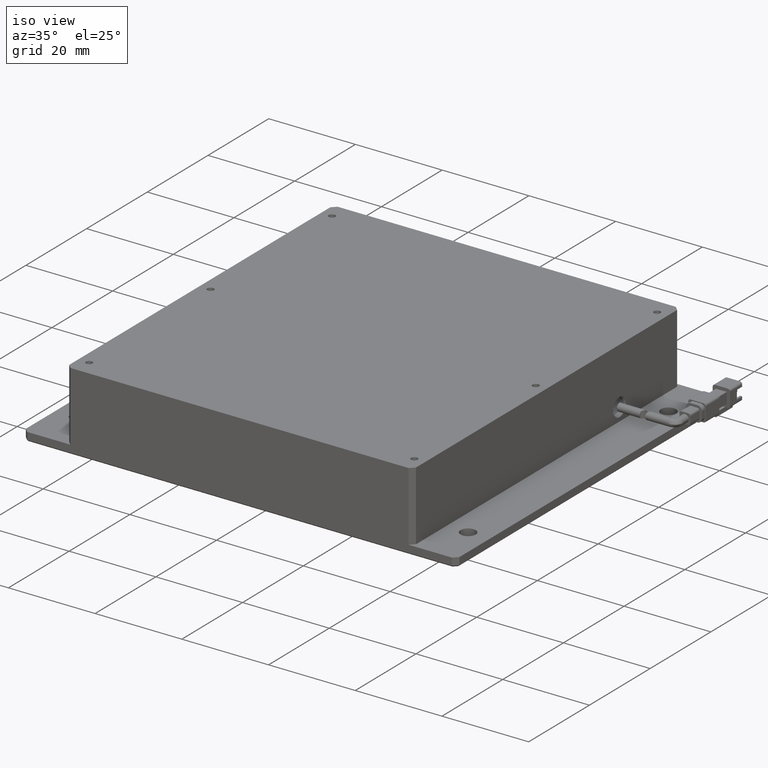
[diagram: clean part render]
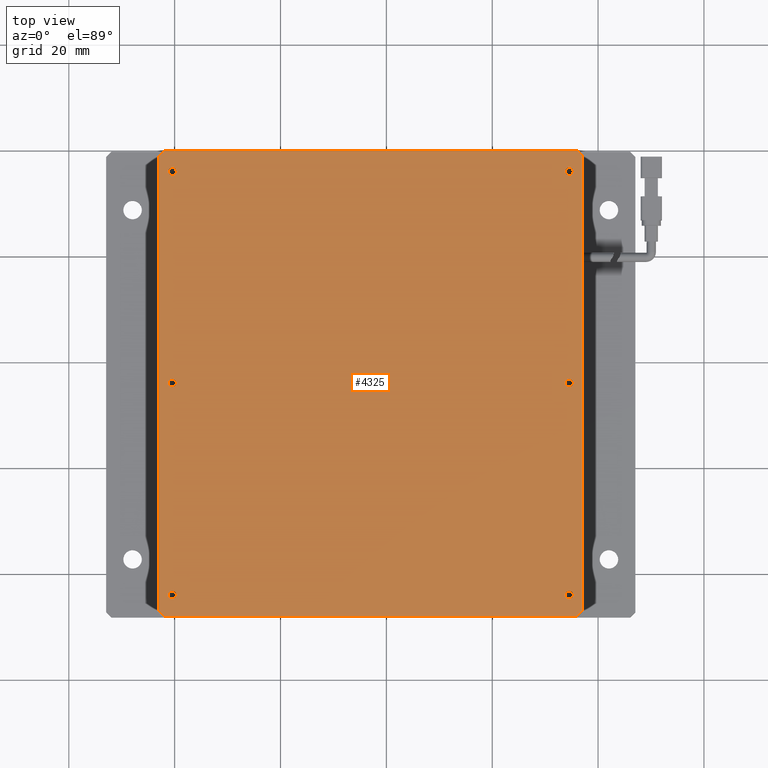
[diagram: tour spotlight — one face highlighted and labeled with its STEP entity id]
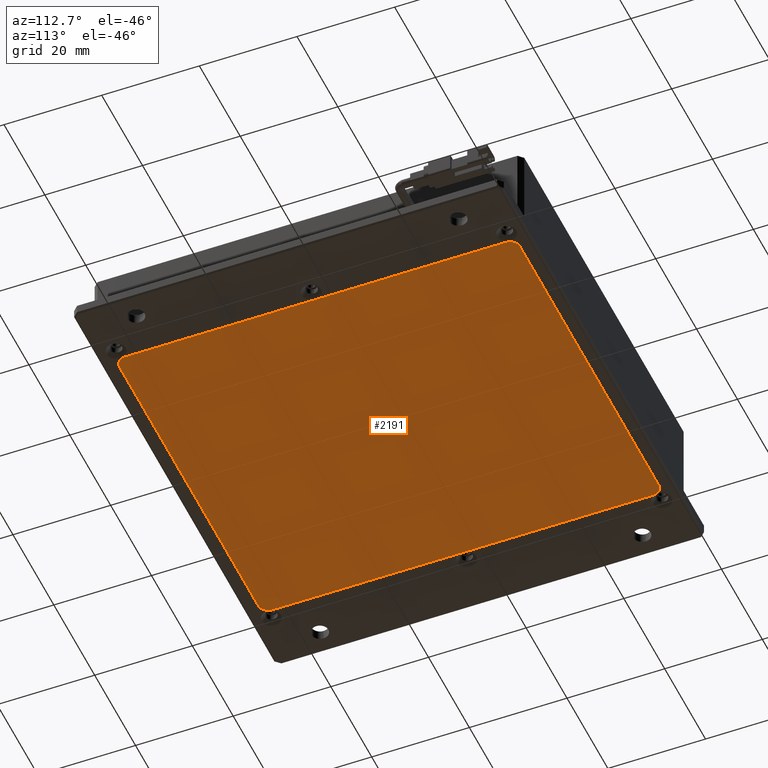
[diagram: tour spotlight — one face highlighted and labeled with its STEP entity id]
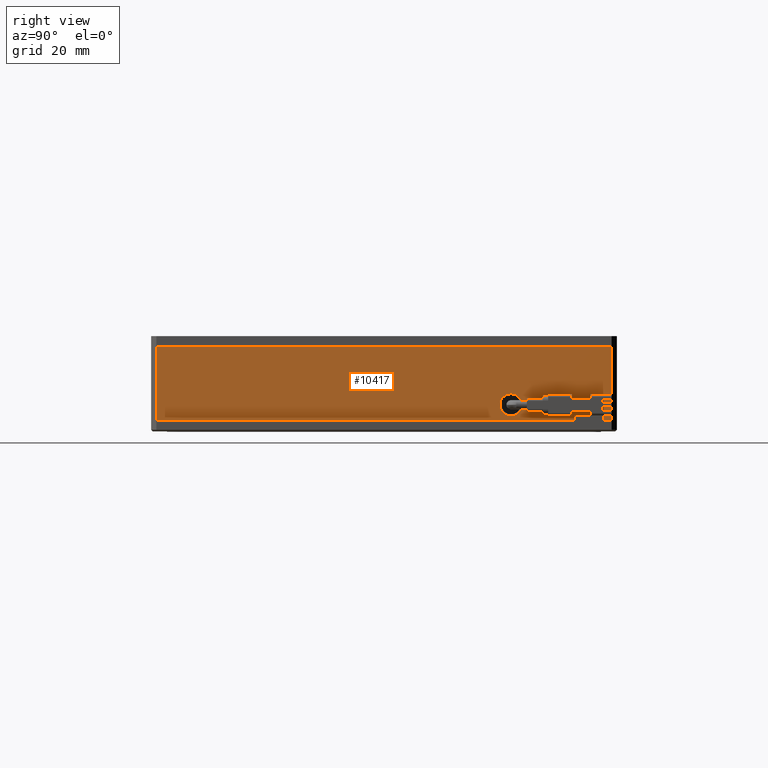
[diagram: tour spotlight — one face highlighted and labeled with its STEP entity id]
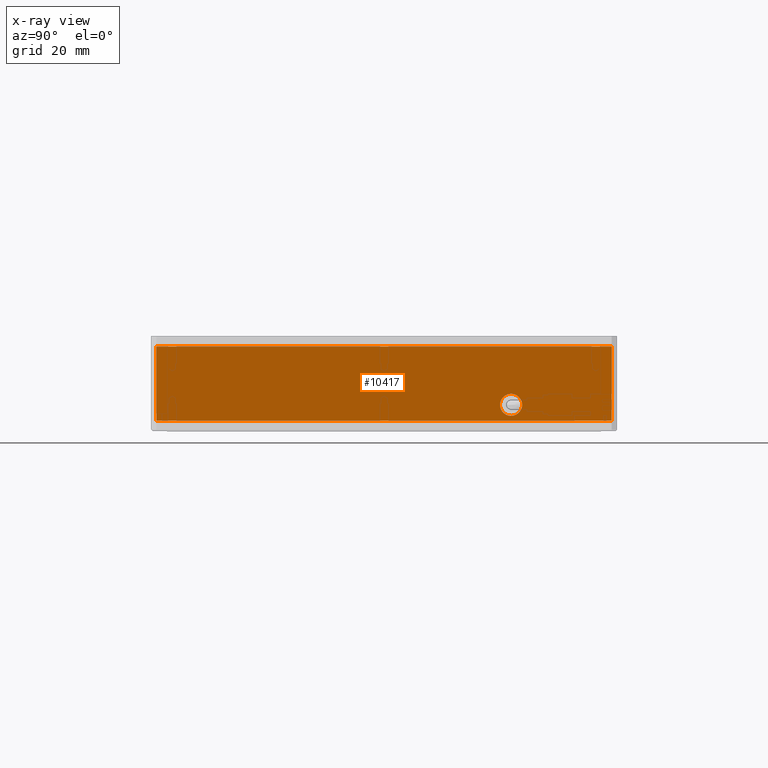
[diagram: x-ray of the same camera — body ghosted, this tour face saturated]
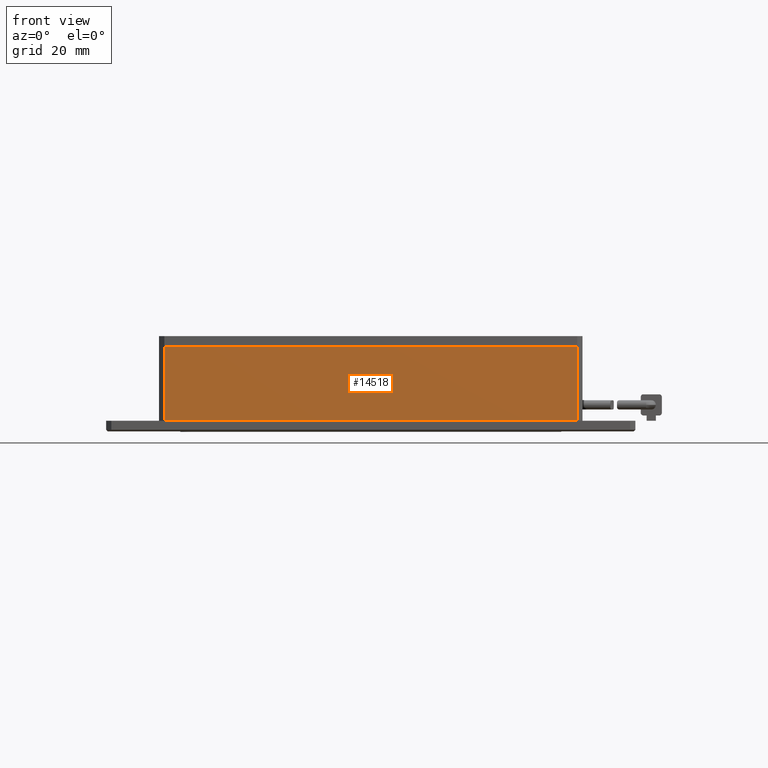
[diagram: tour spotlight — one face highlighted and labeled with its STEP entity id]
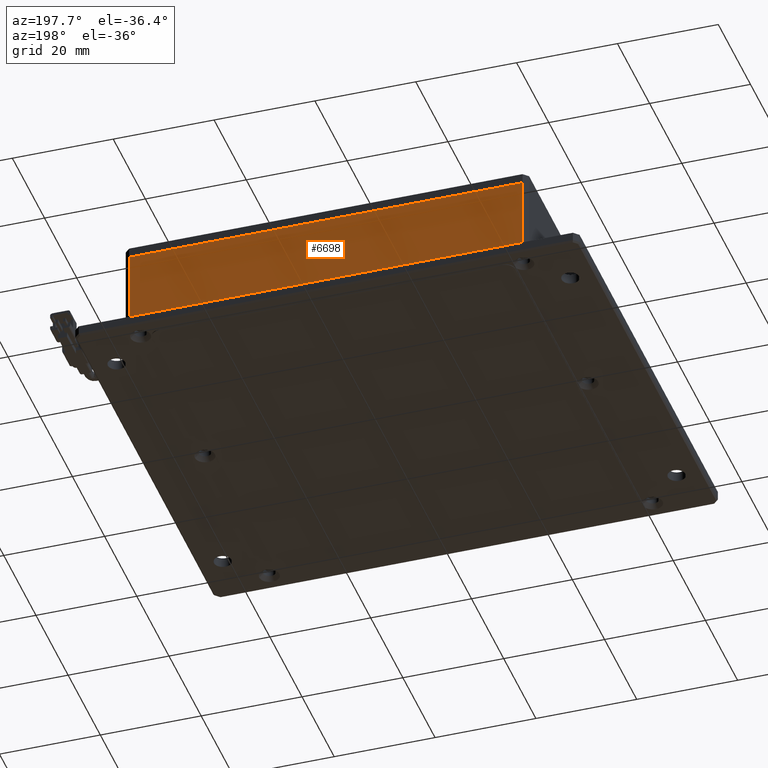
[diagram: tour spotlight — one face highlighted and labeled with its STEP entity id]
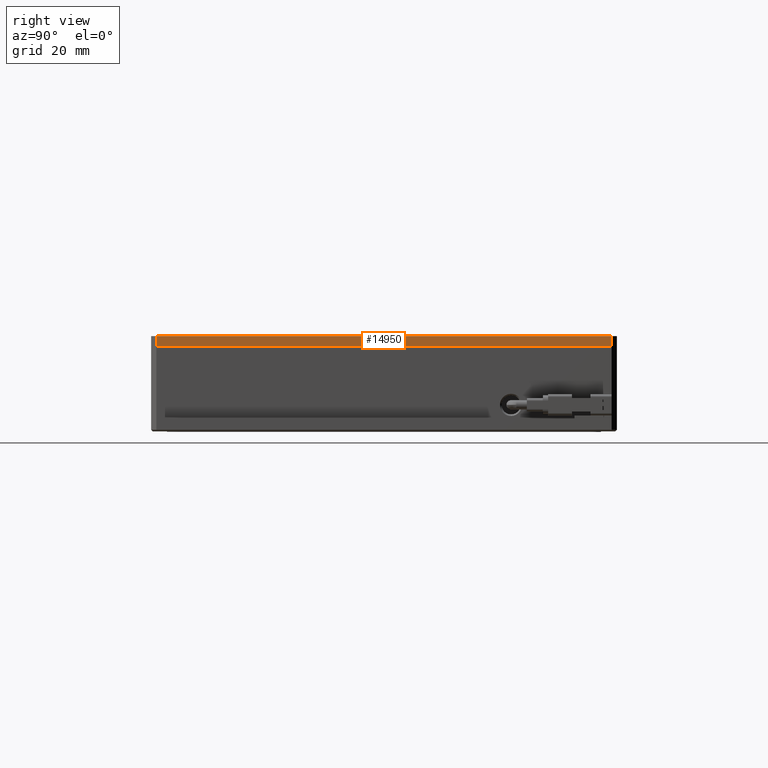
[diagram: tour spotlight — one face highlighted and labeled with its STEP entity id]
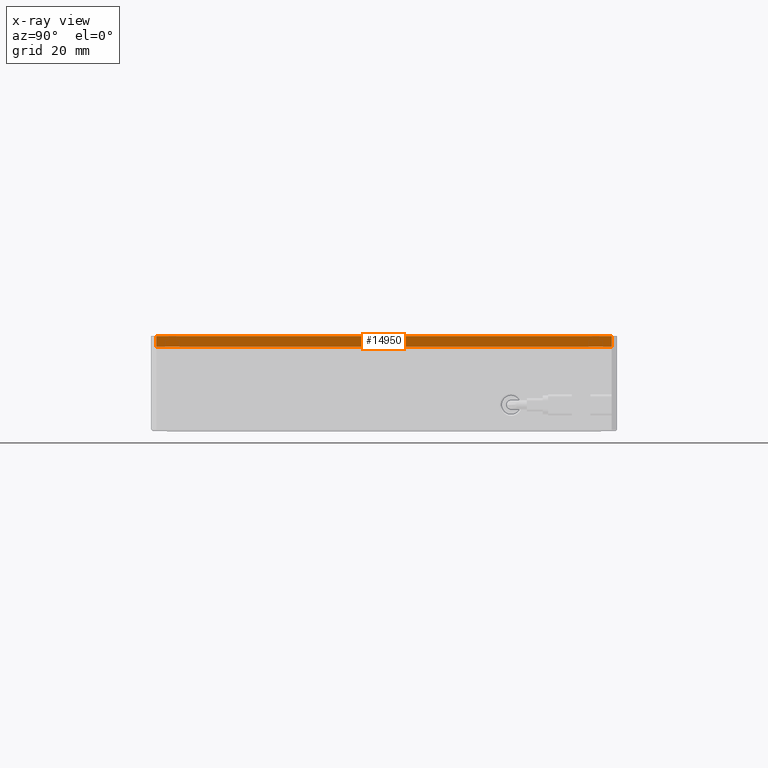
[diagram: x-ray of the same camera — body ghosted, this tour face saturated]
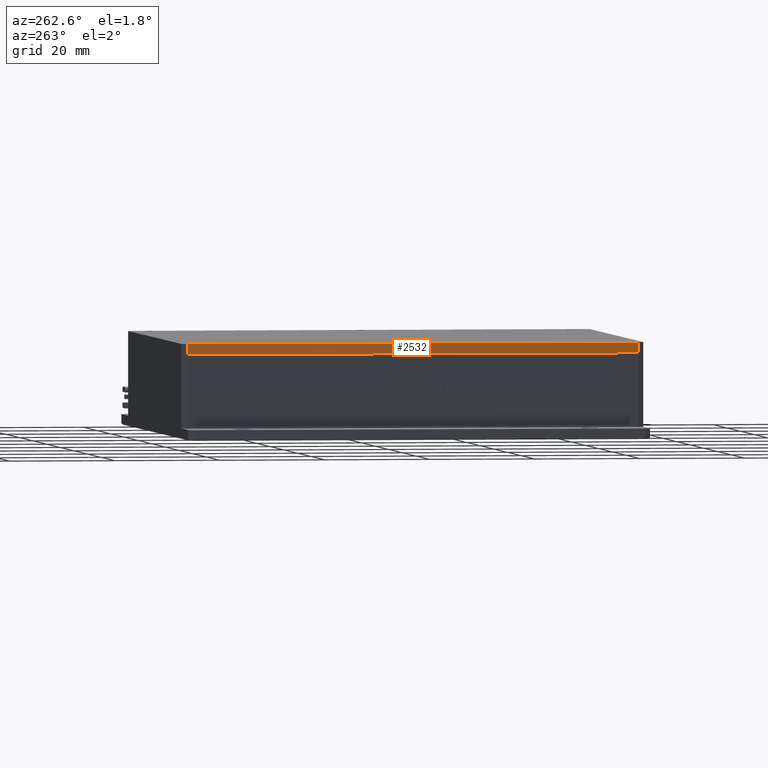
[diagram: tour spotlight — one face highlighted and labeled with its STEP entity id]
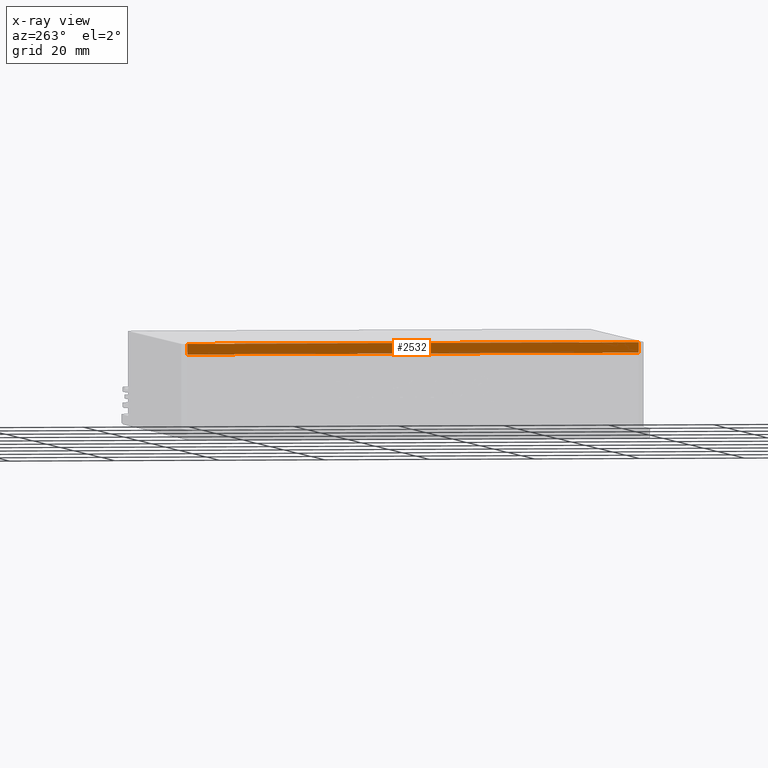
[diagram: x-ray of the same camera — body ghosted, this tour face saturated]
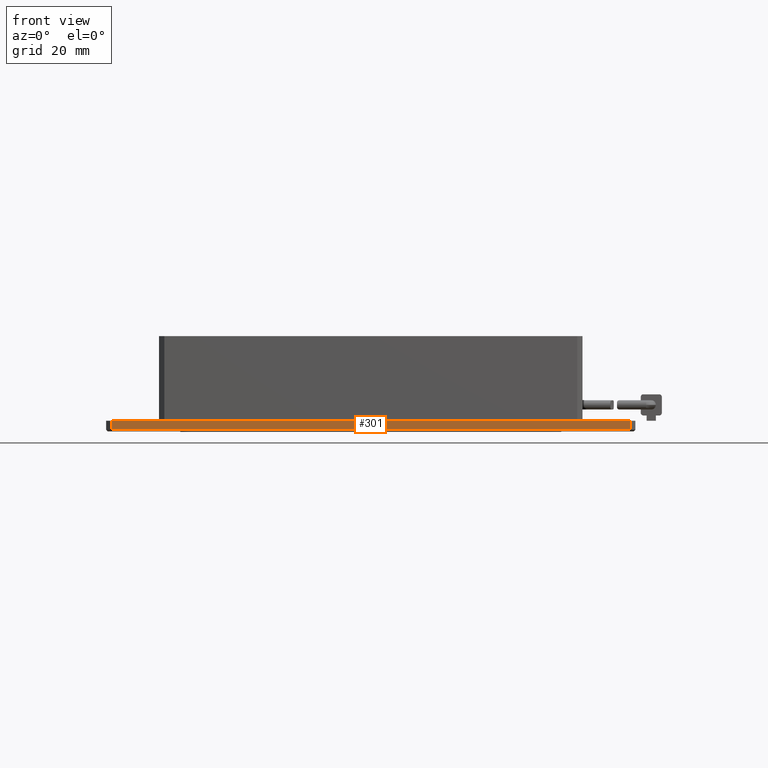
[diagram: tour spotlight — one face highlighted and labeled with its STEP entity id]
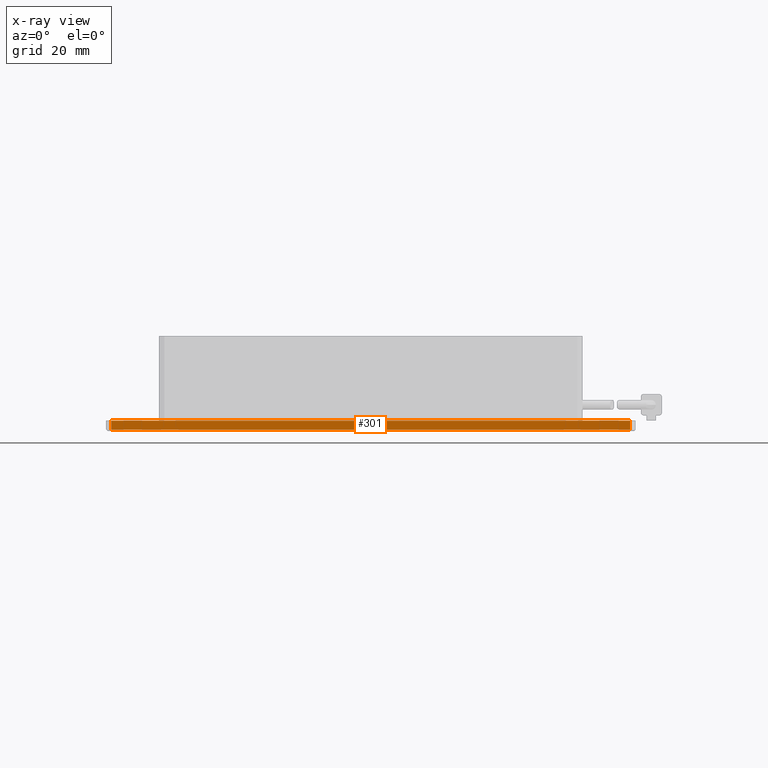
[diagram: x-ray of the same camera — body ghosted, this tour face saturated]
A machine part: a face-by-face anatomy tour. The part has 419 B-rep faces; the first image is the clean iso view, then the 8 largest visible faces are spotlighted one at a time (largest first), each with its STEP entity span.

Face 1 — top view, entity #4325. In plain terms, the highlighted planar face has unit normal (0, 0, 1).
Definition (entity closure, byte-faithful):
#433 = CARTESIAN_POINT ( 'NONE',  ( 53.80231004200067700, 35.79992363497532900, 15.99999999999545600 ) ) ;
#527 = DIRECTION ( 'NONE',  ( 0.0000000000000000000, 0.0000000000000000000, 1.000000000000000000 ) ) ;
#534 = DIRECTION ( 'NONE',  ( -0.7071067811865469100, 0.7071067811865482400, 0.0000000000000000000 ) ) ;
#686 = VERTEX_POINT ( 'NONE', #14427 ) ;
#996 = DIRECTION ( 'NONE',  ( 0.0000000000000000000, 0.0000000000000000000, -1.000000000000000000 ) ) ;
#1053 = VERTEX_POINT ( 'NONE', #8427 ) ;
#1138 = DIRECTION ( 'NONE',  ( -1.000000000000000000, 0.0000000000000000000, 0.0000000000000000000 ) ) ;
#1259 = EDGE_CURVE ( 'NONE', #10862, #11446, #14597, .T. ) ;
#1335 = CARTESIAN_POINT ( 'NONE',  ( -20.44768995799928700, -44.20007636502464300, 15.99999999999545600 ) ) ;
#1338 = CARTESIAN_POINT ( 'NONE',  ( 55.30231004200069100, -4.200076365024715500, 15.99999999999545600 ) ) ;
#1704 = CARTESIAN_POINT ( 'NONE',  ( 56.05231004200065600, 39.79992363497531500, 15.99999999999545600 ) ) ;
#1809 = CIRCLE ( 'NONE', #6921, 0.7500000000000006700 ) ;
#1898 = CARTESIAN_POINT ( 'NONE',  ( 53.80231004200068400, -4.200076365024715500, 15.99999999999545600 ) ) ;
#1986 = EDGE_CURVE ( 'NONE', #11446, #10862, #6411, .T. ) ;
#1996 = VERTEX_POINT ( 'NONE', #1898 ) ;
#2006 = CIRCLE ( 'NONE', #16395, 0.7500000000000006700 ) ;
#2059 = AXIS2_PLACEMENT_3D ( 'NONE', #6174, #15783, #7549 ) ;
#2476 = ORIENTED_EDGE ( 'NONE', *, *, #3124, .T. ) ;
#2542 = FACE_BOUND ( 'NONE', #10980, .T. ) ;
#2716 = DIRECTION ( 'NONE',  ( -1.000000000000000000, 0.0000000000000000000, 0.0000000000000000000 ) ) ;
#2820 = CARTESIAN_POINT ( 'NONE',  ( -19.69768995799928700, -44.20007636502464300, 15.99999999999545600 ) ) ;
#3124 = EDGE_CURVE ( 'NONE', #9339, #11548, #5645, .T. ) ;
#3299 = VERTEX_POINT ( 'NONE', #11050 ) ;
#3390 = VECTOR ( 'NONE', #3647, 1000.000000000000000 ) ;
#3556 = ORIENTED_EDGE ( 'NONE', *, *, #9879, .T. ) ;
#3647 = DIRECTION ( 'NONE',  ( 4.440892098500626200E-016, 1.000000000000000000, 0.0000000000000000000 ) ) ;
#3837 = CARTESIAN_POINT ( 'NONE',  ( 55.30231004200070500, -44.20007636502475600, 15.99999999999545600 ) ) ;
#3889 = DIRECTION ( 'NONE',  ( -4.440892098500626200E-016, -1.000000000000000000, -0.0000000000000000000 ) ) ;
#3994 = VECTOR ( 'NONE', #12648, 1000.000000000000000 ) ;
#4054 = EDGE_CURVE ( 'NONE', #17309, #3299, #14836, .T. ) ;
#4150 = EDGE_CURVE ( 'NONE', #9453, #12008, #15032, .T. ) ;
#4271 = VECTOR ( 'NONE', #15470, 1000.000000000000100 ) ;
#4317 = EDGE_LOOP ( 'NONE', ( #15113, #8524 ) ) ;
#4322 = ORIENTED_EDGE ( 'NONE', *, *, #5707, .T. ) ;
#4325 = ADVANCED_FACE ( 'NONE', ( #13543, #9880, #6628, #6208, #2542, #16744, #13104 ), #10086, .T. ) ;
#4399 = DIRECTION ( 'NONE',  ( 0.0000000000000000000, 0.0000000000000000000, -1.000000000000000000 ) ) ;
#4486 = VECTOR ( 'NONE', #534, 1000.000000000000000 ) ;
#4656 = DIRECTION ( 'NONE',  ( 0.0000000000000000000, 0.0000000000000000000, -1.000000000000000000 ) ) ;
#4698 = EDGE_CURVE ( 'NONE', #1053, #17309, #6813, .T. ) ;
#5261 = AXIS2_PLACEMENT_3D ( 'NONE', #13697, #5412, #15051 ) ;
#5321 = CARTESIAN_POINT ( 'NONE',  ( -22.94768995799934800, -47.20007636502466400, 15.99999999999545600 ) ) ;
#5412 = DIRECTION ( 'NONE',  ( 0.0000000000000000000, 0.0000000000000000000, -1.000000000000000000 ) ) ;
#5611 = CIRCLE ( 'NONE', #8185, 0.7500000000000006700 ) ;
#5645 = CIRCLE ( 'NONE', #16519, 0.7500000000000006700 ) ;
#5707 = EDGE_CURVE ( 'NONE', #16388, #9499, #6926, .T. ) ;
#5802 = CARTESIAN_POINT ( 'NONE',  ( 57.05231004200065600, 39.79992363497531500, 15.99999999999545600 ) ) ;
#5855 = CARTESIAN_POINT ( 'NONE',  ( 56.05231004200068400, -48.20007636502477800, 15.99999999999545600 ) ) ;
#5947 = CIRCLE ( 'NONE', #14403, 0.7500000000000006700 ) ;
#6013 = EDGE_CURVE ( 'NONE', #11548, #9339, #5611, .T. ) ;
#6174 = CARTESIAN_POINT ( 'NONE',  ( 54.55231004200070500, -44.20007636502475600, 15.99999999999545600 ) ) ;
#6208 = FACE_OUTER_BOUND ( 'NONE', #7355, .T. ) ;
#6318 = ORIENTED_EDGE ( 'NONE', *, *, #17138, .T. ) ;
#6393 = CIRCLE ( 'NONE', #11267, 0.7500000000000006700 ) ;
#6411 = CIRCLE ( 'NONE', #11569, 0.7500000000000006700 ) ;
#6413 = ORIENTED_EDGE ( 'NONE', *, *, #16302, .T. ) ;
#6541 = DIRECTION ( 'NONE',  ( 0.0000000000000000000, 0.0000000000000000000, -1.000000000000000000 ) ) ;
#6628 = FACE_BOUND ( 'NONE', #15828, .T. ) ;
#6650 = EDGE_CURVE ( 'NONE', #9499, #15993, #10370, .T. ) ;
#6662 = CARTESIAN_POINT ( 'NONE',  ( 54.55231004200068400, -4.200076365024715500, 15.99999999999545600 ) ) ;
#6686 = DIRECTION ( 'NONE',  ( 0.0000000000000000000, 0.0000000000000000000, -1.000000000000000000 ) ) ;
#6813 = LINE ( 'NONE', #16524, #10496 ) ;
#6921 = AXIS2_PLACEMENT_3D ( 'NONE', #15399, #7151, #16789 ) ;
#6926 = LINE ( 'NONE', #17533, #10197 ) ;
#6973 = CARTESIAN_POINT ( 'NONE',  ( -20.44768995799927700, -4.200076365024618700, 15.99999999999545600 ) ) ;
#7052 = LINE ( 'NONE', #10547, #3390 ) ;
#7128 = VERTEX_POINT ( 'NONE', #2820 ) ;
#7148 = ORIENTED_EDGE ( 'NONE', *, *, #1986, .T. ) ;
#7151 = DIRECTION ( 'NONE',  ( 0.0000000000000000000, 0.0000000000000000000, -1.000000000000000000 ) ) ;
#7187 = EDGE_LOOP ( 'NONE', ( #17250, #3556 ) ) ;
#7267 = ORIENTED_EDGE ( 'NONE', *, *, #12461, .T. ) ;
#7355 = EDGE_LOOP ( 'NONE', ( #17811, #8832, #8895, #9872, #6318, #4322, #8706, #6413 ) ) ;
#7499 = DIRECTION ( 'NONE',  ( 0.0000000000000000000, 0.0000000000000000000, -1.000000000000000000 ) ) ;
#7549 = DIRECTION ( 'NONE',  ( -1.000000000000000000, 0.0000000000000000000, 0.0000000000000000000 ) ) ;
#7711 = EDGE_CURVE ( 'NONE', #12750, #12319, #2006, .T. ) ;
#7803 = CARTESIAN_POINT ( 'NONE',  ( -19.69768995799927300, -4.200076365024618700, 15.99999999999545600 ) ) ;
#8061 = DIRECTION ( 'NONE',  ( -1.000000000000000000, 0.0000000000000000000, 0.0000000000000000000 ) ) ;
#8185 = AXIS2_PLACEMENT_3D ( 'NONE', #12634, #4399, #14025 ) ;
#8353 = DIRECTION ( 'NONE',  ( -1.000000000000000000, 0.0000000000000000000, 0.0000000000000000000 ) ) ;
#8427 = CARTESIAN_POINT ( 'NONE',  ( -21.94768995799933400, -48.20007636502470700, 15.99999999999545600 ) ) ;
#8524 = ORIENTED_EDGE ( 'NONE', *, *, #11099, .T. ) ;
#8557 = AXIS2_PLACEMENT_3D ( 'NONE', #6973, #16594, #8353 ) ;
#8631 = CARTESIAN_POINT ( 'NONE',  ( -21.19768995799933000, 35.79992363497542100, 15.99999999999545600 ) ) ;
#8639 = CARTESIAN_POINT ( 'NONE',  ( 55.30231004200068400, 35.79992363497532900, 15.99999999999545600 ) ) ;
#8706 = ORIENTED_EDGE ( 'NONE', *, *, #6650, .T. ) ;
#8721 = CARTESIAN_POINT ( 'NONE',  ( 57.05231004200065600, 39.79992363497531500, 15.99999999999545600 ) ) ;
#8832 = ORIENTED_EDGE ( 'NONE', *, *, #4054, .T. ) ;
#8867 = CARTESIAN_POINT ( 'NONE',  ( -19.69768995799933000, 35.79992363497542100, 15.99999999999545600 ) ) ;
#8883 = ORIENTED_EDGE ( 'NONE', *, *, #1259, .T. ) ;
#8895 = ORIENTED_EDGE ( 'NONE', *, *, #10539, .T. ) ;
#9056 = CIRCLE ( 'NONE', #8557, 0.7500000000000006700 ) ;
#9196 = CARTESIAN_POINT ( 'NONE',  ( -20.44768995799933000, 35.79992363497542100, 15.99999999999545600 ) ) ;
#9279 = DIRECTION ( 'NONE',  ( -0.7071067811865474600, -0.7071067811865474600, 0.0000000000000000000 ) ) ;
#9339 = VERTEX_POINT ( 'NONE', #8631 ) ;
#9453 = VERTEX_POINT ( 'NONE', #15673 ) ;
#9457 = LINE ( 'NONE', #11545, #13131 ) ;
#9499 = VERTEX_POINT ( 'NONE', #13183 ) ;
#9872 = ORIENTED_EDGE ( 'NONE', *, *, #4150, .T. ) ;
#9879 = EDGE_CURVE ( 'NONE', #12319, #12750, #9942, .T. ) ;
#9880 = FACE_BOUND ( 'NONE', #7187, .T. ) ;
#9892 = ORIENTED_EDGE ( 'NONE', *, *, #14909, .T. ) ;
#9942 = CIRCLE ( 'NONE', #2059, 0.7500000000000006700 ) ;
#10086 = PLANE ( 'NONE',  #15060 ) ;
#10141 = DIRECTION ( 'NONE',  ( 1.000000000000000000, -4.440892098500626200E-016, 0.0000000000000000000 ) ) ;
#10197 = VECTOR ( 'NONE', #9279, 1000.000000000000100 ) ;
#10370 = LINE ( 'NONE', #12139, #17641 ) ;
#10496 = VECTOR ( 'NONE', #15145, 1000.000000000000000 ) ;
#10539 = EDGE_CURVE ( 'NONE', #3299, #9453, #7052, .T. ) ;
#10547 = CARTESIAN_POINT ( 'NONE',  ( 57.05231004200072700, 39.79992363497531500, 15.99999999999545600 ) ) ;
#10596 = DIRECTION ( 'NONE',  ( -1.000000000000000000, 0.0000000000000000000, 0.0000000000000000000 ) ) ;
#10862 = VERTEX_POINT ( 'NONE', #8639 ) ;
#10944 = DIRECTION ( 'NONE',  ( 0.0000000000000000000, 0.0000000000000000000, -1.000000000000000000 ) ) ;
#10969 = ORIENTED_EDGE ( 'NONE', *, *, #6013, .T. ) ;
#10980 = EDGE_LOOP ( 'NONE', ( #7267, #17718 ) ) ;
#11044 = CARTESIAN_POINT ( 'NONE',  ( -21.19768995799929100, -44.20007636502464300, 15.99999999999545600 ) ) ;
#11050 = CARTESIAN_POINT ( 'NONE',  ( 57.05231004200068400, -47.20007636502478500, 15.99999999999545600 ) ) ;
#11099 = EDGE_CURVE ( 'NONE', #17544, #1996, #5947, .T. ) ;
#11154 = AXIS2_PLACEMENT_3D ( 'NONE', #1335, #10944, #2716 ) ;
#11267 = AXIS2_PLACEMENT_3D ( 'NONE', #14936, #6686, #16305 ) ;
#11446 = VERTEX_POINT ( 'NONE', #433 ) ;
#11545 = CARTESIAN_POINT ( 'NONE',  ( -22.94768995799933400, -47.20007636502467800, 15.99999999999545600 ) ) ;
#11548 = VERTEX_POINT ( 'NONE', #8867 ) ;
#11569 = AXIS2_PLACEMENT_3D ( 'NONE', #12907, #4656, #14280 ) ;
#11776 = CARTESIAN_POINT ( 'NONE',  ( -21.94768995799935900, 39.79992363497537200, 15.99999999999545600 ) ) ;
#12008 = VERTEX_POINT ( 'NONE', #1704 ) ;
#12139 = CARTESIAN_POINT ( 'NONE',  ( -22.94768995799934800, 39.79992363497535700, 15.99999999999545600 ) ) ;
#12319 = VERTEX_POINT ( 'NONE', #3837 ) ;
#12337 = AXIS2_PLACEMENT_3D ( 'NONE', #16259, #6541, #1138 ) ;
#12416 = EDGE_CURVE ( 'NONE', #16096, #7128, #17501, .T. ) ;
#12461 = EDGE_CURVE ( 'NONE', #686, #14000, #14479, .T. ) ;
#12634 = CARTESIAN_POINT ( 'NONE',  ( -20.44768995799933000, 35.79992363497542100, 15.99999999999545600 ) ) ;
#12648 = DIRECTION ( 'NONE',  ( -1.000000000000000000, 4.440892098500626200E-016, -0.0000000000000000000 ) ) ;
#12750 = VERTEX_POINT ( 'NONE', #12821 ) ;
#12821 = CARTESIAN_POINT ( 'NONE',  ( 53.80231004200070500, -44.20007636502475600, 15.99999999999545600 ) ) ;
#12907 = CARTESIAN_POINT ( 'NONE',  ( 54.55231004200067700, 35.79992363497532900, 15.99999999999545600 ) ) ;
#13104 = FACE_BOUND ( 'NONE', #4317, .T. ) ;
#13131 = VECTOR ( 'NONE', #14226, 1000.000000000000000 ) ;
#13183 = CARTESIAN_POINT ( 'NONE',  ( -22.94768995799934800, 38.79992363497542800, 15.99999999999545600 ) ) ;
#13543 = FACE_BOUND ( 'NONE', #13879, .T. ) ;
#13697 = CARTESIAN_POINT ( 'NONE',  ( -20.44768995799927700, -4.200076365024618700, 15.99999999999545600 ) ) ;
#13879 = EDGE_LOOP ( 'NONE', ( #7148, #8883 ) ) ;
#14000 = VERTEX_POINT ( 'NONE', #7803 ) ;
#14025 = DIRECTION ( 'NONE',  ( -1.000000000000000000, 0.0000000000000000000, 0.0000000000000000000 ) ) ;
#14226 = DIRECTION ( 'NONE',  ( 0.7071067811865469100, -0.7071067811865482400, -0.0000000000000000000 ) ) ;
#14280 = DIRECTION ( 'NONE',  ( -1.000000000000000000, 0.0000000000000000000, 0.0000000000000000000 ) ) ;
#14403 = AXIS2_PLACEMENT_3D ( 'NONE', #6662, #16276, #8061 ) ;
#14427 = CARTESIAN_POINT ( 'NONE',  ( -21.19768995799927700, -4.200076365024618700, 15.99999999999545600 ) ) ;
#14464 = CARTESIAN_POINT ( 'NONE',  ( 56.05231004200069100, -48.20007636502475600, 15.99999999999545600 ) ) ;
#14479 = CIRCLE ( 'NONE', #5261, 0.7500000000000006700 ) ;
#14597 = CIRCLE ( 'NONE', #12337, 0.7500000000000006700 ) ;
#14836 = LINE ( 'NONE', #5855, #4271 ) ;
#14909 = EDGE_CURVE ( 'NONE', #7128, #16096, #1809, .T. ) ;
#14936 = CARTESIAN_POINT ( 'NONE',  ( 54.55231004200068400, -4.200076365024715500, 15.99999999999545600 ) ) ;
#14986 = LINE ( 'NONE', #5802, #3994 ) ;
#15032 = LINE ( 'NONE', #17062, #4486 ) ;
#15051 = DIRECTION ( 'NONE',  ( -1.000000000000000000, 0.0000000000000000000, 0.0000000000000000000 ) ) ;
#15060 = AXIS2_PLACEMENT_3D ( 'NONE', #8721, #527, #10141 ) ;
#15113 = ORIENTED_EDGE ( 'NONE', *, *, #17477, .T. ) ;
#15145 = DIRECTION ( 'NONE',  ( 1.000000000000000000, -4.440892098500626200E-016, 0.0000000000000000000 ) ) ;
#15399 = CARTESIAN_POINT ( 'NONE',  ( -20.44768995799928700, -44.20007636502464300, 15.99999999999545600 ) ) ;
#15470 = DIRECTION ( 'NONE',  ( 0.7071067811865474600, 0.7071067811865474600, 0.0000000000000000000 ) ) ;
#15475 = EDGE_LOOP ( 'NONE', ( #2476, #10969 ) ) ;
#15581 = EDGE_CURVE ( 'NONE', #14000, #686, #9056, .T. ) ;
#15673 = CARTESIAN_POINT ( 'NONE',  ( 57.05231004200069100, 38.79992363497527200, 15.99999999999545600 ) ) ;
#15729 = CARTESIAN_POINT ( 'NONE',  ( 54.55231004200070500, -44.20007636502475600, 15.99999999999545600 ) ) ;
#15783 = DIRECTION ( 'NONE',  ( 0.0000000000000000000, 0.0000000000000000000, -1.000000000000000000 ) ) ;
#15828 = EDGE_LOOP ( 'NONE', ( #17527, #9892 ) ) ;
#15993 = VERTEX_POINT ( 'NONE', #5321 ) ;
#16096 = VERTEX_POINT ( 'NONE', #11044 ) ;
#16259 = CARTESIAN_POINT ( 'NONE',  ( 54.55231004200067700, 35.79992363497532900, 15.99999999999545600 ) ) ;
#16276 = DIRECTION ( 'NONE',  ( 0.0000000000000000000, 0.0000000000000000000, -1.000000000000000000 ) ) ;
#16302 = EDGE_CURVE ( 'NONE', #15993, #1053, #9457, .T. ) ;
#16305 = DIRECTION ( 'NONE',  ( -1.000000000000000000, 0.0000000000000000000, 0.0000000000000000000 ) ) ;
#16388 = VERTEX_POINT ( 'NONE', #11776 ) ;
#16395 = AXIS2_PLACEMENT_3D ( 'NONE', #15729, #7499, #17152 ) ;
#16519 = AXIS2_PLACEMENT_3D ( 'NONE', #9196, #996, #10596 ) ;
#16524 = CARTESIAN_POINT ( 'NONE',  ( 57.05231004200061300, -48.20007636502470700, 15.99999999999545600 ) ) ;
#16594 = DIRECTION ( 'NONE',  ( 0.0000000000000000000, 0.0000000000000000000, -1.000000000000000000 ) ) ;
#16744 = FACE_BOUND ( 'NONE', #15475, .T. ) ;
#16789 = DIRECTION ( 'NONE',  ( -1.000000000000000000, 0.0000000000000000000, 0.0000000000000000000 ) ) ;
#17062 = CARTESIAN_POINT ( 'NONE',  ( 57.05231004200067700, 38.79992363497530100, 15.99999999999545600 ) ) ;
#17138 = EDGE_CURVE ( 'NONE', #12008, #16388, #14986, .T. ) ;
#17152 = DIRECTION ( 'NONE',  ( -1.000000000000000000, 0.0000000000000000000, 0.0000000000000000000 ) ) ;
#17250 = ORIENTED_EDGE ( 'NONE', *, *, #7711, .T. ) ;
#17309 = VERTEX_POINT ( 'NONE', #14464 ) ;
#17477 = EDGE_CURVE ( 'NONE', #1996, #17544, #6393, .T. ) ;
#17501 = CIRCLE ( 'NONE', #11154, 0.7500000000000006700 ) ;
#17527 = ORIENTED_EDGE ( 'NONE', *, *, #12416, .T. ) ;
#17533 = CARTESIAN_POINT ( 'NONE',  ( -21.94768995799934400, 39.79992363497542800, 15.99999999999545600 ) ) ;
#17544 = VERTEX_POINT ( 'NONE', #1338 ) ;
#17641 = VECTOR ( 'NONE', #3889, 1000.000000000000000 ) ;
#17718 = ORIENTED_EDGE ( 'NONE', *, *, #15581, .T. ) ;
#17811 = ORIENTED_EDGE ( 'NONE', *, *, #4698, .T. ) ;

Face 2 — auxiliary view, entity #2191. In plain terms, the highlighted planar face has unit normal (0, 0, -1).
Definition (entity closure, byte-faithful):
#65 = DIRECTION ( 'NONE',  ( -1.000000000000000000, 0.0000000000000000000, 0.0000000000000000000 ) ) ;
#144 = CARTESIAN_POINT ( 'NONE',  ( -16.94768995799925500, -43.20007636502477100, -2.100000000004547600 ) ) ;
#277 = CARTESIAN_POINT ( 'NONE',  ( -18.94768995799925900, 34.79992363497521500, -2.100000000004547600 ) ) ;
#753 = VERTEX_POINT ( 'NONE', #4490 ) ;
#1070 = CARTESIAN_POINT ( 'NONE',  ( 51.05231004200074800, -45.20007636502477800, -2.100000000004547600 ) ) ;
#1493 = DIRECTION ( 'NONE',  ( -1.000000000000000000, 0.0000000000000000000, -0.0000000000000000000 ) ) ;
#1566 = DIRECTION ( 'NONE',  ( 4.448008912761044700E-017, 1.000000000000000000, -0.0000000000000000000 ) ) ;
#1859 = CARTESIAN_POINT ( 'NONE',  ( 53.05231004200076200, 34.79992363497521500, -2.100000000004547600 ) ) ;
#2063 = CARTESIAN_POINT ( 'NONE',  ( 51.05231004200074800, -43.20007636502477100, -2.100000000004547600 ) ) ;
#2177 = VECTOR ( 'NONE', #7475, 1000.000000000000000 ) ;
#2191 = ADVANCED_FACE ( 'NONE', ( #7675 ), #13786, .T. ) ;
#2330 = DIRECTION ( 'NONE',  ( 0.0000000000000000000, 0.0000000000000000000, -1.000000000000000000 ) ) ;
#2565 = AXIS2_PLACEMENT_3D ( 'NONE', #144, #9763, #1493 ) ;
#2595 = LINE ( 'NONE', #8845, #2177 ) ;
#2937 = CARTESIAN_POINT ( 'NONE',  ( -16.94768995799925500, -43.20007636502477100, -2.100000000004547600 ) ) ;
#3030 = ORIENTED_EDGE ( 'NONE', *, *, #14448, .T. ) ;
#3274 = VECTOR ( 'NONE', #10573, 1000.000000000000000 ) ;
#3407 = DIRECTION ( 'NONE',  ( -1.000000000000000000, 0.0000000000000000000, 0.0000000000000000000 ) ) ;
#3504 = EDGE_LOOP ( 'NONE', ( #11037, #5540, #11879, #13868, #3828, #3030, #10230, #13014 ) ) ;
#3828 = ORIENTED_EDGE ( 'NONE', *, *, #7861, .T. ) ;
#4321 = DIRECTION ( 'NONE',  ( -1.000000000000000000, 0.0000000000000000000, 0.0000000000000000000 ) ) ;
#4490 = CARTESIAN_POINT ( 'NONE',  ( -18.94768995799926300, -43.20007636502477100, -2.100000000004547600 ) ) ;
#4892 = EDGE_CURVE ( 'NONE', #8422, #11599, #12833, .T. ) ;
#5415 = CIRCLE ( 'NONE', #14214, 2.000000000000008900 ) ;
#5540 = ORIENTED_EDGE ( 'NONE', *, *, #12628, .T. ) ;
#6143 = AXIS2_PLACEMENT_3D ( 'NONE', #2063, #11690, #3407 ) ;
#6423 = CARTESIAN_POINT ( 'NONE',  ( 51.05231004200074800, 36.79992363497521500, -2.100000000004547600 ) ) ;
#6502 = LINE ( 'NONE', #277, #13824 ) ;
#6844 = EDGE_CURVE ( 'NONE', #9021, #8422, #14421, .T. ) ;
#6925 = LINE ( 'NONE', #6423, #3274 ) ;
#7475 = DIRECTION ( 'NONE',  ( -0.0000000000000000000, -1.000000000000000000, -0.0000000000000000000 ) ) ;
#7604 = CARTESIAN_POINT ( 'NONE',  ( -16.94768995799924500, 36.79992363497521500, -2.100000000004547600 ) ) ;
#7675 = FACE_OUTER_BOUND ( 'NONE', #3504, .T. ) ;
#7861 = EDGE_CURVE ( 'NONE', #9946, #11483, #5415, .T. ) ;
#7881 = CARTESIAN_POINT ( 'NONE',  ( 53.05231004200075500, -43.20007636502477100, -2.100000000004547600 ) ) ;
#8275 = DIRECTION ( 'NONE',  ( 0.0000000000000000000, 0.0000000000000000000, -1.000000000000000000 ) ) ;
#8422 = VERTEX_POINT ( 'NONE', #1070 ) ;
#8845 = CARTESIAN_POINT ( 'NONE',  ( 53.05231004200076200, -43.20007636502477100, -2.100000000004547600 ) ) ;
#9021 = VERTEX_POINT ( 'NONE', #7881 ) ;
#9673 = EDGE_CURVE ( 'NONE', #17794, #14524, #13346, .T. ) ;
#9763 = DIRECTION ( 'NONE',  ( 0.0000000000000000000, 0.0000000000000000000, -1.000000000000000000 ) ) ;
#9946 = VERTEX_POINT ( 'NONE', #13168 ) ;
#10230 = ORIENTED_EDGE ( 'NONE', *, *, #6844, .T. ) ;
#10573 = DIRECTION ( 'NONE',  ( 1.000000000000000000, -0.0000000000000000000, -0.0000000000000000000 ) ) ;
#10578 = CARTESIAN_POINT ( 'NONE',  ( 51.05231004200074800, 34.79992363497521500, -2.100000000004547600 ) ) ;
#10759 = EDGE_CURVE ( 'NONE', #11599, #753, #16732, .T. ) ;
#11037 = ORIENTED_EDGE ( 'NONE', *, *, #10759, .T. ) ;
#11417 = AXIS2_PLACEMENT_3D ( 'NONE', #2937, #12561, #4321 ) ;
#11483 = VERTEX_POINT ( 'NONE', #1859 ) ;
#11599 = VERTEX_POINT ( 'NONE', #15900 ) ;
#11678 = CARTESIAN_POINT ( 'NONE',  ( -16.94768995799925200, -45.20007636502477100, -2.100000000004547600 ) ) ;
#11690 = DIRECTION ( 'NONE',  ( 0.0000000000000000000, 0.0000000000000000000, -1.000000000000000000 ) ) ;
#11879 = ORIENTED_EDGE ( 'NONE', *, *, #9673, .T. ) ;
#11959 = DIRECTION ( 'NONE',  ( -1.000000000000000000, 0.0000000000000000000, 0.0000000000000000000 ) ) ;
#12561 = DIRECTION ( 'NONE',  ( 0.0000000000000000000, 0.0000000000000000000, -1.000000000000000000 ) ) ;
#12628 = EDGE_CURVE ( 'NONE', #753, #17794, #6502, .T. ) ;
#12833 = LINE ( 'NONE', #11678, #16041 ) ;
#13014 = ORIENTED_EDGE ( 'NONE', *, *, #4892, .T. ) ;
#13146 = CARTESIAN_POINT ( 'NONE',  ( -18.94768995799925200, 34.79992363497521500, -2.100000000004547600 ) ) ;
#13168 = CARTESIAN_POINT ( 'NONE',  ( 51.05231004200074800, 36.79992363497522200, -2.100000000004547600 ) ) ;
#13346 = CIRCLE ( 'NONE', #16553, 2.000000000000008900 ) ;
#13605 = EDGE_CURVE ( 'NONE', #14524, #9946, #6925, .T. ) ;
#13786 = PLANE ( 'NONE',  #2565 ) ;
#13824 = VECTOR ( 'NONE', #1566, 1000.000000000000000 ) ;
#13868 = ORIENTED_EDGE ( 'NONE', *, *, #13605, .T. ) ;
#14214 = AXIS2_PLACEMENT_3D ( 'NONE', #10578, #2330, #11959 ) ;
#14421 = CIRCLE ( 'NONE', #6143, 2.000000000000008900 ) ;
#14430 = DIRECTION ( 'NONE',  ( -1.000000000000000000, 1.020425574104004100E-016, -0.0000000000000000000 ) ) ;
#14448 = EDGE_CURVE ( 'NONE', #11483, #9021, #2595, .T. ) ;
#14524 = VERTEX_POINT ( 'NONE', #7604 ) ;
#15900 = CARTESIAN_POINT ( 'NONE',  ( -16.94768995799925200, -45.20007636502477100, -2.100000000004547600 ) ) ;
#16041 = VECTOR ( 'NONE', #14430, 1000.000000000000000 ) ;
#16510 = CARTESIAN_POINT ( 'NONE',  ( -16.94768995799924500, 34.79992363497521500, -2.100000000004547600 ) ) ;
#16553 = AXIS2_PLACEMENT_3D ( 'NONE', #16510, #8275, #65 ) ;
#16732 = CIRCLE ( 'NONE', #11417, 2.000000000000005300 ) ;
#17794 = VERTEX_POINT ( 'NONE', #13146 ) ;

Face 3 — right view, entity #10417. An x-ray twin of the same camera follows (body ghosted, this face saturated) — the face is partly hidden behind the body. In plain terms, the highlighted planar face has unit normal (-1, 0, 0).
Definition (entity closure, byte-faithful):
#99 = VECTOR ( 'NONE', #13939, 1000.000000000000000 ) ;
#583 = CARTESIAN_POINT ( 'NONE',  ( 57.05231004200075500, 38.79992363497521500, 13.99999999999545400 ) ) ;
#659 = EDGE_LOOP ( 'NONE', ( #13453, #2033 ) ) ;
#737 = LINE ( 'NONE', #16247, #7586 ) ;
#931 = ORIENTED_EDGE ( 'NONE', *, *, #1196, .F. ) ;
#1075 = VECTOR ( 'NONE', #5744, 1000.000000000000000 ) ;
#1108 = EDGE_CURVE ( 'NONE', #12846, #2280, #1473, .T. ) ;
#1196 = EDGE_CURVE ( 'NONE', #15842, #2280, #6219, .T. ) ;
#1473 = LINE ( 'NONE', #15378, #1075 ) ;
#1827 = CARTESIAN_POINT ( 'NONE',  ( 57.05231004197073500, 19.79992363497521500, 2.999999999995452500 ) ) ;
#2007 = PLANE ( 'NONE',  #15766 ) ;
#2033 = ORIENTED_EDGE ( 'NONE', *, *, #13473, .F. ) ;
#2069 = CARTESIAN_POINT ( 'NONE',  ( 57.05231004200075500, -48.20007636502477800, 13.99999999999545400 ) ) ;
#2280 = VERTEX_POINT ( 'NONE', #7139 ) ;
#2549 = VECTOR ( 'NONE', #2602, 1000.000000000000000 ) ;
#2602 = DIRECTION ( 'NONE',  ( 0.0000000000000000000, 0.0000000000000000000, 1.000000000000000000 ) ) ;
#2608 = ORIENTED_EDGE ( 'NONE', *, *, #1108, .T. ) ;
#2775 = FACE_BOUND ( 'NONE', #659, .T. ) ;
#2879 = ORIENTED_EDGE ( 'NONE', *, *, #5797, .F. ) ;
#2967 = CIRCLE ( 'NONE', #8585, 2.099999999984447600 ) ;
#3192 = DIRECTION ( 'NONE',  ( 0.0000000000000000000, 0.0000000000000000000, -1.000000000000000000 ) ) ;
#3335 = DIRECTION ( 'NONE',  ( 1.000000000000000000, 0.0000000000000000000, 0.0000000000000000000 ) ) ;
#3413 = DIRECTION ( 'NONE',  ( 0.0000000000000000000, 0.0000000000000000000, 1.000000000000000000 ) ) ;
#3672 = CARTESIAN_POINT ( 'NONE',  ( 57.05231004197073500, 19.79992363497521500, 5.099999999979897500 ) ) ;
#4318 = EDGE_CURVE ( 'NONE', #17261, #9984, #2967, .T. ) ;
#4374 = CARTESIAN_POINT ( 'NONE',  ( 57.05231004200075500, 38.79992363497520100, 13.99999999999545400 ) ) ;
#4425 = CARTESIAN_POINT ( 'NONE',  ( 57.05231004200074100, 38.79992363497521500, -4.552781762701130200E-012 ) ) ;
#5744 = DIRECTION ( 'NONE',  ( -0.0000000000000000000, -1.000000000000000000, -0.0000000000000000000 ) ) ;
#5797 = EDGE_CURVE ( 'NONE', #13377, #15842, #737, .T. ) ;
#6219 = LINE ( 'NONE', #11375, #2549 ) ;
#7139 = CARTESIAN_POINT ( 'NONE',  ( 57.05231004200076900, -47.20007636502479200, 13.99999999999545400 ) ) ;
#7586 = VECTOR ( 'NONE', #17627, 1000.000000000000000 ) ;
#7828 = LINE ( 'NONE', #4374, #99 ) ;
#8585 = AXIS2_PLACEMENT_3D ( 'NONE', #1827, #11457, #3192 ) ;
#9227 = FACE_OUTER_BOUND ( 'NONE', #10505, .T. ) ;
#9984 = VERTEX_POINT ( 'NONE', #3672 ) ;
#10364 = CARTESIAN_POINT ( 'NONE',  ( 57.05231004200074100, -47.20007636502479200, -4.551047039225153400E-012 ) ) ;
#10417 = ADVANCED_FACE ( 'NONE', ( #9227, #2775 ), #2007, .F. ) ;
#10505 = EDGE_LOOP ( 'NONE', ( #931, #2879, #17616, #2608 ) ) ;
#11375 = CARTESIAN_POINT ( 'NONE',  ( 57.05231004200075500, -47.20007636502478500, 13.99999999999545400 ) ) ;
#11457 = DIRECTION ( 'NONE',  ( 1.000000000000000000, 0.0000000000000000000, 0.0000000000000000000 ) ) ;
#11603 = CARTESIAN_POINT ( 'NONE',  ( 57.05231004197073500, 19.79992363497521500, 2.999999999995452500 ) ) ;
#11697 = DIRECTION ( 'NONE',  ( -1.000000000000000000, 0.0000000000000000000, 0.0000000000000000000 ) ) ;
#12106 = CIRCLE ( 'NONE', #14055, 2.099999999984447600 ) ;
#12846 = VERTEX_POINT ( 'NONE', #583 ) ;
#12986 = DIRECTION ( 'NONE',  ( 0.0000000000000000000, 0.0000000000000000000, -1.000000000000000000 ) ) ;
#13321 = EDGE_CURVE ( 'NONE', #12846, #13377, #7828, .T. ) ;
#13377 = VERTEX_POINT ( 'NONE', #4425 ) ;
#13453 = ORIENTED_EDGE ( 'NONE', *, *, #4318, .F. ) ;
#13473 = EDGE_CURVE ( 'NONE', #9984, #17261, #12106, .T. ) ;
#13939 = DIRECTION ( 'NONE',  ( -0.0000000000000000000, -0.0000000000000000000, -1.000000000000000000 ) ) ;
#14055 = AXIS2_PLACEMENT_3D ( 'NONE', #11603, #3335, #12986 ) ;
#15378 = CARTESIAN_POINT ( 'NONE',  ( 57.05231004200076900, 39.79992363497522200, 13.99999999999545400 ) ) ;
#15766 = AXIS2_PLACEMENT_3D ( 'NONE', #2069, #11697, #3413 ) ;
#15842 = VERTEX_POINT ( 'NONE', #10364 ) ;
#16247 = CARTESIAN_POINT ( 'NONE',  ( 57.05231004200075500, 39.79992363497522200, -4.547577592273199800E-012 ) ) ;
#17131 = CARTESIAN_POINT ( 'NONE',  ( 57.05231004197073500, 19.79992363497521500, 0.9000000000110074400 ) ) ;
#17261 = VERTEX_POINT ( 'NONE', #17131 ) ;
#17616 = ORIENTED_EDGE ( 'NONE', *, *, #13321, .F. ) ;
#17627 = DIRECTION ( 'NONE',  ( -0.0000000000000000000, -1.000000000000000000, -0.0000000000000000000 ) ) ;

Face 4 — front view, entity #14518. In plain terms, the highlighted planar face has unit normal (0, 1, 0).
Definition (entity closure, byte-faithful):
#1973 = EDGE_LOOP ( 'NONE', ( #4806, #2220, #13164, #4163 ) ) ;
#2101 = AXIS2_PLACEMENT_3D ( 'NONE', #15885, #7661, #17304 ) ;
#2220 = ORIENTED_EDGE ( 'NONE', *, *, #14132, .F. ) ;
#2375 = EDGE_CURVE ( 'NONE', #4984, #9193, #14556, .T. ) ;
#2902 = CARTESIAN_POINT ( 'NONE',  ( 56.05231004200073400, -48.20007636502477800, 13.99999999999545400 ) ) ;
#3077 = LINE ( 'NONE', #5348, #10424 ) ;
#3427 = PLANE ( 'NONE',  #2101 ) ;
#3904 = DIRECTION ( 'NONE',  ( -1.000000000000000000, 0.0000000000000000000, -0.0000000000000000000 ) ) ;
#4080 = FACE_OUTER_BOUND ( 'NONE', #1973, .T. ) ;
#4163 = ORIENTED_EDGE ( 'NONE', *, *, #8478, .T. ) ;
#4806 = ORIENTED_EDGE ( 'NONE', *, *, #13337, .T. ) ;
#4984 = VERTEX_POINT ( 'NONE', #9131 ) ;
#5348 = CARTESIAN_POINT ( 'NONE',  ( -22.94768995799924800, -48.20007636502477800, 13.99999999999545400 ) ) ;
#6044 = VERTEX_POINT ( 'NONE', #8591 ) ;
#6590 = VERTEX_POINT ( 'NONE', #7708 ) ;
#6673 = LINE ( 'NONE', #14843, #17248 ) ;
#6942 = VECTOR ( 'NONE', #9929, 1000.000000000000000 ) ;
#7661 = DIRECTION ( 'NONE',  ( 0.0000000000000000000, 1.000000000000000000, 0.0000000000000000000 ) ) ;
#7708 = CARTESIAN_POINT ( 'NONE',  ( -21.94768995799925200, -48.20007636502477800, -4.549312315749176600E-012 ) ) ;
#8478 = EDGE_CURVE ( 'NONE', #4984, #6044, #3077, .T. ) ;
#8591 = CARTESIAN_POINT ( 'NONE',  ( -21.94768995799925500, -48.20007636502477800, 13.99999999999545400 ) ) ;
#9131 = CARTESIAN_POINT ( 'NONE',  ( 56.05231004200073400, -48.20007636502477800, 13.99999999999545400 ) ) ;
#9193 = VERTEX_POINT ( 'NONE', #11053 ) ;
#9421 = DIRECTION ( 'NONE',  ( -1.000000000000000000, 0.0000000000000000000, -0.0000000000000000000 ) ) ;
#9929 = DIRECTION ( 'NONE',  ( -0.0000000000000000000, 0.0000000000000000000, -1.000000000000000000 ) ) ;
#10424 = VECTOR ( 'NONE', #3904, 1000.000000000000000 ) ;
#10626 = LINE ( 'NONE', #15383, #6942 ) ;
#11053 = CARTESIAN_POINT ( 'NONE',  ( 56.05231004200073400, -48.20007636502477800, -4.552781762701130200E-012 ) ) ;
#11146 = DIRECTION ( 'NONE',  ( -0.0000000000000000000, 0.0000000000000000000, -1.000000000000000000 ) ) ;
#13164 = ORIENTED_EDGE ( 'NONE', *, *, #2375, .F. ) ;
#13337 = EDGE_CURVE ( 'NONE', #6044, #6590, #10626, .T. ) ;
#14124 = VECTOR ( 'NONE', #11146, 1000.000000000000000 ) ;
#14132 = EDGE_CURVE ( 'NONE', #9193, #6590, #6673, .T. ) ;
#14518 = ADVANCED_FACE ( 'NONE', ( #4080 ), #3427, .F. ) ;
#14556 = LINE ( 'NONE', #2902, #14124 ) ;
#14843 = CARTESIAN_POINT ( 'NONE',  ( -22.94768995799924800, -48.20007636502477800, -4.547577592273199800E-012 ) ) ;
#15383 = CARTESIAN_POINT ( 'NONE',  ( -21.94768995799926300, -48.20007636502477800, 13.99999999999545400 ) ) ;
#15885 = CARTESIAN_POINT ( 'NONE',  ( -22.94768995799924800, -48.20007636502477800, 13.99999999999545400 ) ) ;
#17248 = VECTOR ( 'NONE', #9421, 1000.000000000000000 ) ;
#17304 = DIRECTION ( 'NONE',  ( 0.0000000000000000000, -0.0000000000000000000, 1.000000000000000000 ) ) ;

Face 5 — auxiliary view, entity #6698. In plain terms, the highlighted planar face has unit normal (0, -1, 0).
Definition (entity closure, byte-faithful):
#1269 = DIRECTION ( 'NONE',  ( 0.0000000000000000000, -1.000000000000000000, 0.0000000000000000000 ) ) ;
#2008 = ORIENTED_EDGE ( 'NONE', *, *, #7269, .T. ) ;
#2025 = EDGE_CURVE ( 'NONE', #8982, #14583, #12856, .T. ) ;
#2830 = ORIENTED_EDGE ( 'NONE', *, *, #4412, .F. ) ;
#3324 = CARTESIAN_POINT ( 'NONE',  ( 56.05231004200073400, 39.79992363497522200, 13.99999999999545400 ) ) ;
#4412 = EDGE_CURVE ( 'NONE', #16216, #8982, #9650, .T. ) ;
#4630 = AXIS2_PLACEMENT_3D ( 'NONE', #9513, #1269, #10876 ) ;
#4994 = CARTESIAN_POINT ( 'NONE',  ( 56.05231004200072700, 39.79992363497522200, 13.99999999999545400 ) ) ;
#5259 = ORIENTED_EDGE ( 'NONE', *, *, #13859, .T. ) ;
#5875 = CARTESIAN_POINT ( 'NONE',  ( -21.94768995799925200, 39.79992363497522200, -4.550179677487165000E-012 ) ) ;
#5972 = VECTOR ( 'NONE', #13012, 1000.000000000000000 ) ;
#6679 = FACE_OUTER_BOUND ( 'NONE', #9999, .T. ) ;
#6698 = ADVANCED_FACE ( 'NONE', ( #6679 ), #12197, .F. ) ;
#7269 = EDGE_CURVE ( 'NONE', #15071, #14583, #16662, .T. ) ;
#7512 = CARTESIAN_POINT ( 'NONE',  ( -21.94768995799925500, 39.79992363497522200, 13.99999999999545400 ) ) ;
#7567 = VECTOR ( 'NONE', #17088, 1000.000000000000000 ) ;
#8808 = CARTESIAN_POINT ( 'NONE',  ( -21.94768995799925900, 39.79992363497522200, 13.99999999999545400 ) ) ;
#8982 = VERTEX_POINT ( 'NONE', #17345 ) ;
#9190 = VECTOR ( 'NONE', #11589, 1000.000000000000000 ) ;
#9513 = CARTESIAN_POINT ( 'NONE',  ( -22.94768995799924800, 39.79992363497522200, 13.99999999999545400 ) ) ;
#9650 = LINE ( 'NONE', #11632, #5972 ) ;
#9806 = VECTOR ( 'NONE', #9997, 1000.000000000000000 ) ;
#9997 = DIRECTION ( 'NONE',  ( 1.000000000000000000, -0.0000000000000000000, 0.0000000000000000000 ) ) ;
#9999 = EDGE_LOOP ( 'NONE', ( #5259, #2008, #10715, #2830 ) ) ;
#10715 = ORIENTED_EDGE ( 'NONE', *, *, #2025, .F. ) ;
#10876 = DIRECTION ( 'NONE',  ( 0.0000000000000000000, -0.0000000000000000000, -1.000000000000000000 ) ) ;
#11227 = LINE ( 'NONE', #8808, #7567 ) ;
#11589 = DIRECTION ( 'NONE',  ( -0.0000000000000000000, 0.0000000000000000000, 1.000000000000000000 ) ) ;
#11632 = CARTESIAN_POINT ( 'NONE',  ( -22.94768995799924800, 39.79992363497522200, -4.547577592273199800E-012 ) ) ;
#12197 = PLANE ( 'NONE',  #4630 ) ;
#12856 = LINE ( 'NONE', #3324, #9190 ) ;
#13012 = DIRECTION ( 'NONE',  ( 1.000000000000000000, -0.0000000000000000000, 0.0000000000000000000 ) ) ;
#13859 = EDGE_CURVE ( 'NONE', #16216, #15071, #11227, .T. ) ;
#14583 = VERTEX_POINT ( 'NONE', #4994 ) ;
#15071 = VERTEX_POINT ( 'NONE', #7512 ) ;
#15439 = CARTESIAN_POINT ( 'NONE',  ( -22.94768995799924800, 39.79992363497522200, 13.99999999999545400 ) ) ;
#16216 = VERTEX_POINT ( 'NONE', #5875 ) ;
#16662 = LINE ( 'NONE', #15439, #9806 ) ;
#17088 = DIRECTION ( 'NONE',  ( -0.0000000000000000000, 0.0000000000000000000, 1.000000000000000000 ) ) ;
#17345 = CARTESIAN_POINT ( 'NONE',  ( 56.05231004200073400, 39.79992363497522200, -4.551047039225153400E-012 ) ) ;

Face 6 — right view, entity #14950. An x-ray twin of the same camera follows (body ghosted, this face saturated) — the face is partly hidden behind the body. In plain terms, the highlighted planar face has unit normal (-1, -0, 0).
Definition (entity closure, byte-faithful):
#220 = CARTESIAN_POINT ( 'NONE',  ( 57.05231004200068400, -48.20007636502477800, 13.99999999999545600 ) ) ;
#1730 = VERTEX_POINT ( 'NONE', #5123 ) ;
#1981 = LINE ( 'NONE', #220, #12501 ) ;
#3299 = VERTEX_POINT ( 'NONE', #11050 ) ;
#3390 = VECTOR ( 'NONE', #3647, 1000.000000000000000 ) ;
#3647 = DIRECTION ( 'NONE',  ( 4.440892098500626200E-016, 1.000000000000000000, 0.0000000000000000000 ) ) ;
#4510 = DIRECTION ( 'NONE',  ( -1.000000000000000000, -2.308759244390948100E-016, 0.0000000000000000000 ) ) ;
#4746 = LINE ( 'NONE', #5720, #12063 ) ;
#5123 = CARTESIAN_POINT ( 'NONE',  ( 57.05231004200069100, 38.79992363497527200, 13.99999999999545600 ) ) ;
#5720 = CARTESIAN_POINT ( 'NONE',  ( 57.05231004200068400, -47.20007636502477800, 13.99999999999545600 ) ) ;
#6024 = EDGE_CURVE ( 'NONE', #1730, #9233, #1981, .T. ) ;
#6312 = EDGE_CURVE ( 'NONE', #9233, #3299, #4746, .T. ) ;
#6689 = ORIENTED_EDGE ( 'NONE', *, *, #6312, .F. ) ;
#7052 = LINE ( 'NONE', #10547, #3390 ) ;
#7206 = PLANE ( 'NONE',  #13423 ) ;
#9233 = VERTEX_POINT ( 'NONE', #9700 ) ;
#9453 = VERTEX_POINT ( 'NONE', #15673 ) ;
#9700 = CARTESIAN_POINT ( 'NONE',  ( 57.05231004200068400, -47.20007636502477800, 13.99999999999545600 ) ) ;
#9900 = DIRECTION ( 'NONE',  ( 2.308759244390948100E-016, -1.000000000000000000, -0.0000000000000000000 ) ) ;
#10183 = EDGE_CURVE ( 'NONE', #9453, #1730, #15061, .T. ) ;
#10539 = EDGE_CURVE ( 'NONE', #3299, #9453, #7052, .T. ) ;
#10547 = CARTESIAN_POINT ( 'NONE',  ( 57.05231004200072700, 39.79992363497531500, 15.99999999999545600 ) ) ;
#11050 = CARTESIAN_POINT ( 'NONE',  ( 57.05231004200068400, -47.20007636502478500, 15.99999999999545600 ) ) ;
#11083 = CARTESIAN_POINT ( 'NONE',  ( 57.05231004200066300, 38.79992363497527200, 13.99999999999545600 ) ) ;
#11420 = VECTOR ( 'NONE', #12457, 1000.000000000000000 ) ;
#11820 = ORIENTED_EDGE ( 'NONE', *, *, #6024, .F. ) ;
#12063 = VECTOR ( 'NONE', #15354, 1000.000000000000000 ) ;
#12457 = DIRECTION ( 'NONE',  ( 0.0000000000000000000, 0.0000000000000000000, -1.000000000000000000 ) ) ;
#12501 = VECTOR ( 'NONE', #9900, 1000.000000000000000 ) ;
#12576 = EDGE_LOOP ( 'NONE', ( #14502, #16652, #6689, #11820 ) ) ;
#12752 = CARTESIAN_POINT ( 'NONE',  ( 57.05231004200068400, -48.20007636502477800, 13.99999999999545600 ) ) ;
#13423 = AXIS2_PLACEMENT_3D ( 'NONE', #12752, #4510, #14142 ) ;
#14142 = DIRECTION ( 'NONE',  ( -2.308759244390948100E-016, 1.000000000000000000, 0.0000000000000000000 ) ) ;
#14502 = ORIENTED_EDGE ( 'NONE', *, *, #10183, .F. ) ;
#14950 = ADVANCED_FACE ( 'NONE', ( #15991 ), #7206, .F. ) ;
#15061 = LINE ( 'NONE', #11083, #11420 ) ;
#15354 = DIRECTION ( 'NONE',  ( -0.0000000000000000000, -0.0000000000000000000, 1.000000000000000000 ) ) ;
#15673 = CARTESIAN_POINT ( 'NONE',  ( 57.05231004200069100, 38.79992363497527200, 15.99999999999545600 ) ) ;
#15991 = FACE_OUTER_BOUND ( 'NONE', #12576, .T. ) ;
#16652 = ORIENTED_EDGE ( 'NONE', *, *, #10539, .F. ) ;

Face 7 — auxiliary view, entity #2532. An x-ray twin of the same camera follows (body ghosted, this face saturated) — the face is partly hidden behind the body. In plain terms, the highlighted planar face has unit normal (1, 0, 0).
Definition (entity closure, byte-faithful):
#1385 = CARTESIAN_POINT ( 'NONE',  ( -22.94768995799933400, -47.20007636502466400, 13.99999999999545600 ) ) ;
#1387 = CARTESIAN_POINT ( 'NONE',  ( -22.94768995799934800, -47.20007636502466400, 13.99999999999545600 ) ) ;
#1599 = CARTESIAN_POINT ( 'NONE',  ( -22.94768995799933400, -48.20007636502467800, 13.99999999999545600 ) ) ;
#2532 = ADVANCED_FACE ( 'NONE', ( #12593 ), #14528, .F. ) ;
#2758 = DIRECTION ( 'NONE',  ( 0.0000000000000000000, 0.0000000000000000000, -1.000000000000000000 ) ) ;
#3130 = VECTOR ( 'NONE', #16576, 1000.000000000000000 ) ;
#3285 = VERTEX_POINT ( 'NONE', #1387 ) ;
#3889 = DIRECTION ( 'NONE',  ( -4.440892098500626200E-016, -1.000000000000000000, -0.0000000000000000000 ) ) ;
#5321 = CARTESIAN_POINT ( 'NONE',  ( -22.94768995799934800, -47.20007636502466400, 15.99999999999545600 ) ) ;
#5551 = AXIS2_PLACEMENT_3D ( 'NONE', #6345, #15934, #7718 ) ;
#5562 = VECTOR ( 'NONE', #15380, 1000.000000000000000 ) ;
#6345 = CARTESIAN_POINT ( 'NONE',  ( -22.94768995799933400, -48.20007636502467800, 13.99999999999545600 ) ) ;
#6650 = EDGE_CURVE ( 'NONE', #9499, #15993, #10370, .T. ) ;
#7447 = VERTEX_POINT ( 'NONE', #16528 ) ;
#7718 = DIRECTION ( 'NONE',  ( 7.317379025938512900E-017, -1.000000000000000000, -0.0000000000000000000 ) ) ;
#8900 = ORIENTED_EDGE ( 'NONE', *, *, #16160, .F. ) ;
#9033 = ORIENTED_EDGE ( 'NONE', *, *, #13192, .F. ) ;
#9499 = VERTEX_POINT ( 'NONE', #13183 ) ;
#10370 = LINE ( 'NONE', #12139, #17641 ) ;
#10676 = ORIENTED_EDGE ( 'NONE', *, *, #6650, .F. ) ;
#11372 = EDGE_CURVE ( 'NONE', #7447, #9499, #14118, .T. ) ;
#12139 = CARTESIAN_POINT ( 'NONE',  ( -22.94768995799934800, 39.79992363497535700, 15.99999999999545600 ) ) ;
#12456 = LINE ( 'NONE', #1599, #5562 ) ;
#12580 = EDGE_LOOP ( 'NONE', ( #16485, #8900, #9033, #10676 ) ) ;
#12593 = FACE_OUTER_BOUND ( 'NONE', #12580, .T. ) ;
#13183 = CARTESIAN_POINT ( 'NONE',  ( -22.94768995799934800, 38.79992363497542800, 15.99999999999545600 ) ) ;
#13192 = EDGE_CURVE ( 'NONE', #15993, #3285, #17716, .T. ) ;
#13662 = VECTOR ( 'NONE', #2758, 1000.000000000000000 ) ;
#13940 = CARTESIAN_POINT ( 'NONE',  ( -22.94768995799933400, 38.79992363497540000, 13.99999999999545600 ) ) ;
#14118 = LINE ( 'NONE', #13940, #3130 ) ;
#14528 = PLANE ( 'NONE',  #5551 ) ;
#15380 = DIRECTION ( 'NONE',  ( -7.317379025938512900E-017, 1.000000000000000000, 0.0000000000000000000 ) ) ;
#15934 = DIRECTION ( 'NONE',  ( 1.000000000000000000, 7.317379025938512900E-017, 0.0000000000000000000 ) ) ;
#15993 = VERTEX_POINT ( 'NONE', #5321 ) ;
#16160 = EDGE_CURVE ( 'NONE', #3285, #7447, #12456, .T. ) ;
#16485 = ORIENTED_EDGE ( 'NONE', *, *, #11372, .F. ) ;
#16528 = CARTESIAN_POINT ( 'NONE',  ( -22.94768995799934800, 38.79992363497540000, 13.99999999999545600 ) ) ;
#16576 = DIRECTION ( 'NONE',  ( -0.0000000000000000000, -0.0000000000000000000, 1.000000000000000000 ) ) ;
#17641 = VECTOR ( 'NONE', #3889, 1000.000000000000000 ) ;
#17716 = LINE ( 'NONE', #1385, #13662 ) ;

Face 8 — front view, entity #301. An x-ray twin of the same camera follows (body ghosted, this face saturated) — the face is partly hidden behind the body. In plain terms, the highlighted planar face has unit normal (0, 1, 0).
Definition (entity closure, byte-faithful):
#301 = ADVANCED_FACE ( 'NONE', ( #16742 ), #17143, .F. ) ;
#618 = DIRECTION ( 'NONE',  ( 0.0000000000000000000, -0.0000000000000000000, 1.000000000000000000 ) ) ;
#669 = ORIENTED_EDGE ( 'NONE', *, *, #15923, .F. ) ;
#878 = CARTESIAN_POINT ( 'NONE',  ( 66.05231004200071300, -48.20007636502478500, -4.547577592273199800E-012 ) ) ;
#1248 = LINE ( 'NONE', #16941, #15009 ) ;
#1807 = VERTEX_POINT ( 'NONE', #9479 ) ;
#1946 = EDGE_CURVE ( 'NONE', #1807, #6961, #1248, .T. ) ;
#1969 = CARTESIAN_POINT ( 'NONE',  ( -32.94768995799925900, -48.20007636502478500, -4.547577592273199800E-012 ) ) ;
#2172 = DIRECTION ( 'NONE',  ( -0.0000000000000000000, 0.0000000000000000000, -1.000000000000000000 ) ) ;
#2450 = ORIENTED_EDGE ( 'NONE', *, *, #1946, .T. ) ;
#4662 = EDGE_CURVE ( 'NONE', #10655, #1807, #7233, .T. ) ;
#4727 = VERTEX_POINT ( 'NONE', #13893 ) ;
#5457 = DIRECTION ( 'NONE',  ( -1.000000000000000000, 0.0000000000000000000, -0.0000000000000000000 ) ) ;
#5582 = LINE ( 'NONE', #878, #12930 ) ;
#6669 = EDGE_LOOP ( 'NONE', ( #669, #14015, #6950, #2450 ) ) ;
#6950 = ORIENTED_EDGE ( 'NONE', *, *, #4662, .T. ) ;
#6961 = VERTEX_POINT ( 'NONE', #14675 ) ;
#7085 = VECTOR ( 'NONE', #16145, 1000.000000000000000 ) ;
#7233 = LINE ( 'NONE', #8173, #14575 ) ;
#7284 = DIRECTION ( 'NONE',  ( -0.0000000000000000000, 0.0000000000000000000, -1.000000000000000000 ) ) ;
#8173 = CARTESIAN_POINT ( 'NONE',  ( -32.94768995799925900, -48.20007636502478500, -4.547577592273199800E-012 ) ) ;
#9479 = CARTESIAN_POINT ( 'NONE',  ( -31.94768995799927300, -48.20007636502478500, -4.547577592273199800E-012 ) ) ;
#10238 = DIRECTION ( 'NONE',  ( 0.0000000000000000000, 1.000000000000000000, 0.0000000000000000000 ) ) ;
#10655 = VERTEX_POINT ( 'NONE', #10829 ) ;
#10751 = LINE ( 'NONE', #13255, #7085 ) ;
#10829 = CARTESIAN_POINT ( 'NONE',  ( 66.05231004200074100, -48.20007636502478500, -4.547577592273199800E-012 ) ) ;
#12930 = VECTOR ( 'NONE', #2172, 1000.000000000000000 ) ;
#13255 = CARTESIAN_POINT ( 'NONE',  ( -32.94768995799925900, -48.20007636502478500, -1.700000000004553000 ) ) ;
#13893 = CARTESIAN_POINT ( 'NONE',  ( 66.05231004200074100, -48.20007636502478500, -1.700000000004553000 ) ) ;
#14015 = ORIENTED_EDGE ( 'NONE', *, *, #15853, .F. ) ;
#14575 = VECTOR ( 'NONE', #5457, 1000.000000000000000 ) ;
#14675 = CARTESIAN_POINT ( 'NONE',  ( -31.94768995799927300, -48.20007636502478500, -1.700000000004552100 ) ) ;
#15009 = VECTOR ( 'NONE', #7284, 1000.000000000000000 ) ;
#15315 = AXIS2_PLACEMENT_3D ( 'NONE', #1969, #10238, #618 ) ;
#15853 = EDGE_CURVE ( 'NONE', #10655, #4727, #5582, .T. ) ;
#15923 = EDGE_CURVE ( 'NONE', #4727, #6961, #10751, .T. ) ;
#16145 = DIRECTION ( 'NONE',  ( -1.000000000000000000, -0.0000000000000000000, 0.0000000000000000000 ) ) ;
#16742 = FACE_OUTER_BOUND ( 'NONE', #6669, .T. ) ;
#16941 = CARTESIAN_POINT ( 'NONE',  ( -31.94768995799927300, -48.20007636502478500, -4.547577592273199800E-012 ) ) ;
#17143 = PLANE ( 'NONE',  #15315 ) ;